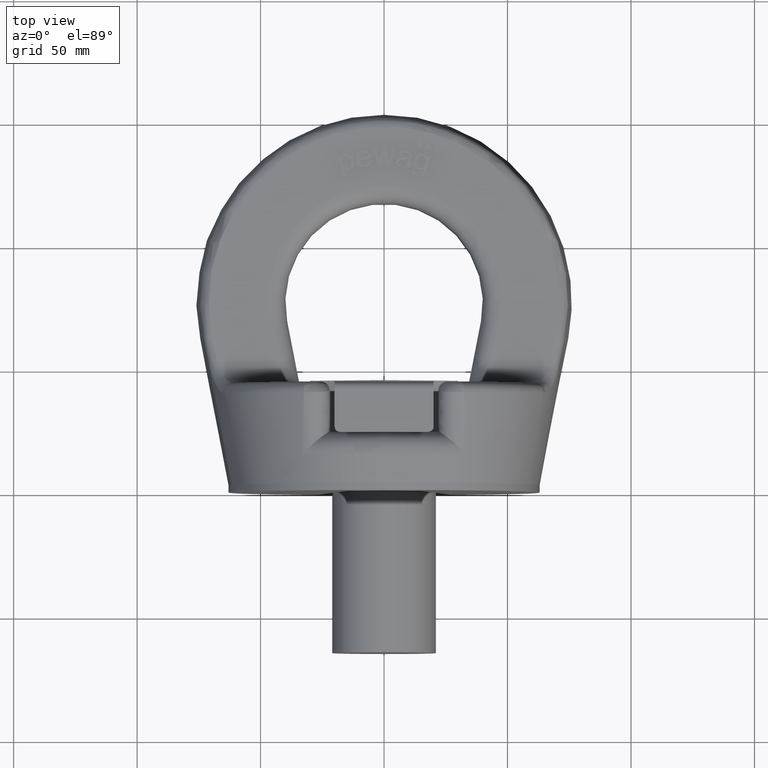
[diagram: clean part render]
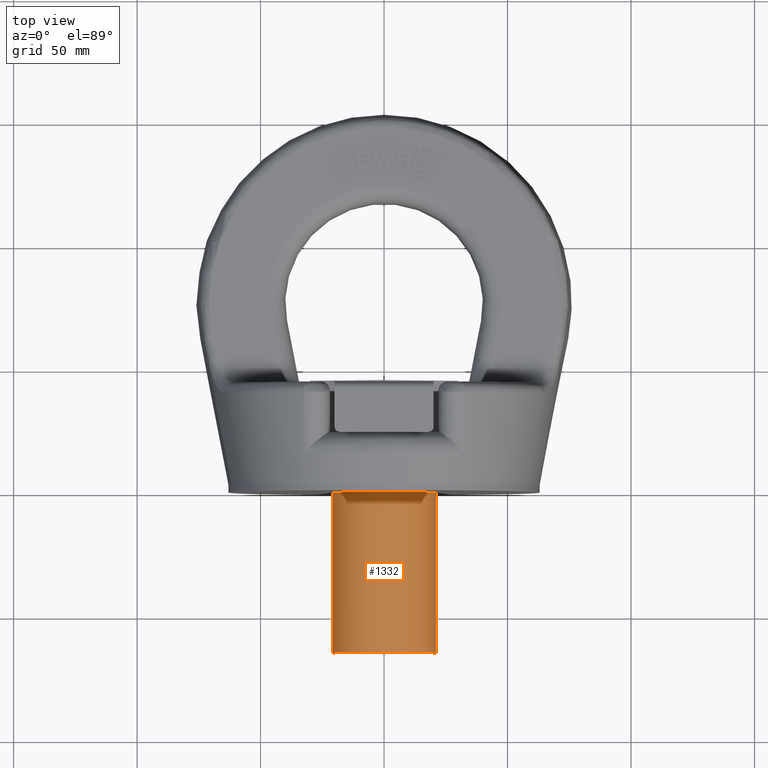
[diagram: same view with one face highlighted and labeled with its STEP entity id]
A machine part, top view. The second image highlights one B-rep face of the part: STEP entity #1332.
In plain terms, the highlighted cylindrical surface (bore or boss wall) has radius 21 mm, axis along (0, 1, 0).
Its self-contained STEP definition (entity closure, byte-faithful):
#1058=CYLINDRICAL_SURFACE('',#5172,21.);
#1332=ADVANCED_FACE('',(#1773,#1774),#1058,.T.);
#1690=CIRCLE('',#5157,21.);
#1691=CIRCLE('',#5171,21.);
#1773=FACE_BOUND('',#1847,.T.);
#1774=FACE_BOUND('',#1848,.T.);
#1847=EDGE_LOOP('',(#2899));
#1848=EDGE_LOOP('',(#2900));
#2899=ORIENTED_EDGE('',*,*,#4427,.T.);
#2900=ORIENTED_EDGE('',*,*,#4408,.F.);
#4012=VERTEX_POINT('',#6895);
#4019=VERTEX_POINT('',#6932);
#4408=EDGE_CURVE('',#4012,#4012,#1690,.T.);
#4427=EDGE_CURVE('',#4019,#4019,#1691,.T.);
#5157=AXIS2_PLACEMENT_3D('',#6894,#5533,#5534);
#5171=AXIS2_PLACEMENT_3D('',#6931,#5577,#5578);
#5172=AXIS2_PLACEMENT_3D('',#6933,#5579,#5580);
#5533=DIRECTION('',(0.,1.,0.));
#5534=DIRECTION('',(1.,0.,6.12323399573677E-17));
#5577=DIRECTION('',(0.,1.,0.));
#5578=DIRECTION('',(1.,0.,6.12323399573677E-17));
#5579=DIRECTION('',(0.,1.,0.));
#5580=DIRECTION('',(0.,0.,1.));
#6894=CARTESIAN_POINT('',(0.,0.,0.));
#6895=CARTESIAN_POINT('',(21.,0.,1.28587913910472E-15));
#6931=CARTESIAN_POINT('',(0.,-65.,0.));
#6932=CARTESIAN_POINT('',(21.,-65.,1.28587913910472E-15));
#6933=CARTESIAN_POINT('',(0.,-65.,0.));